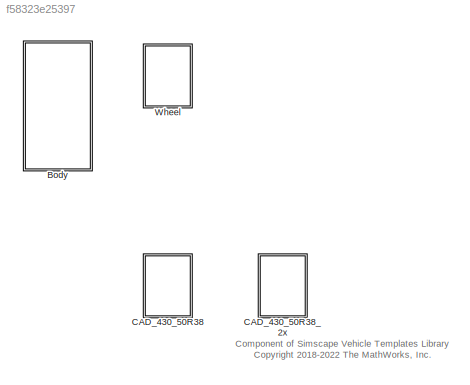
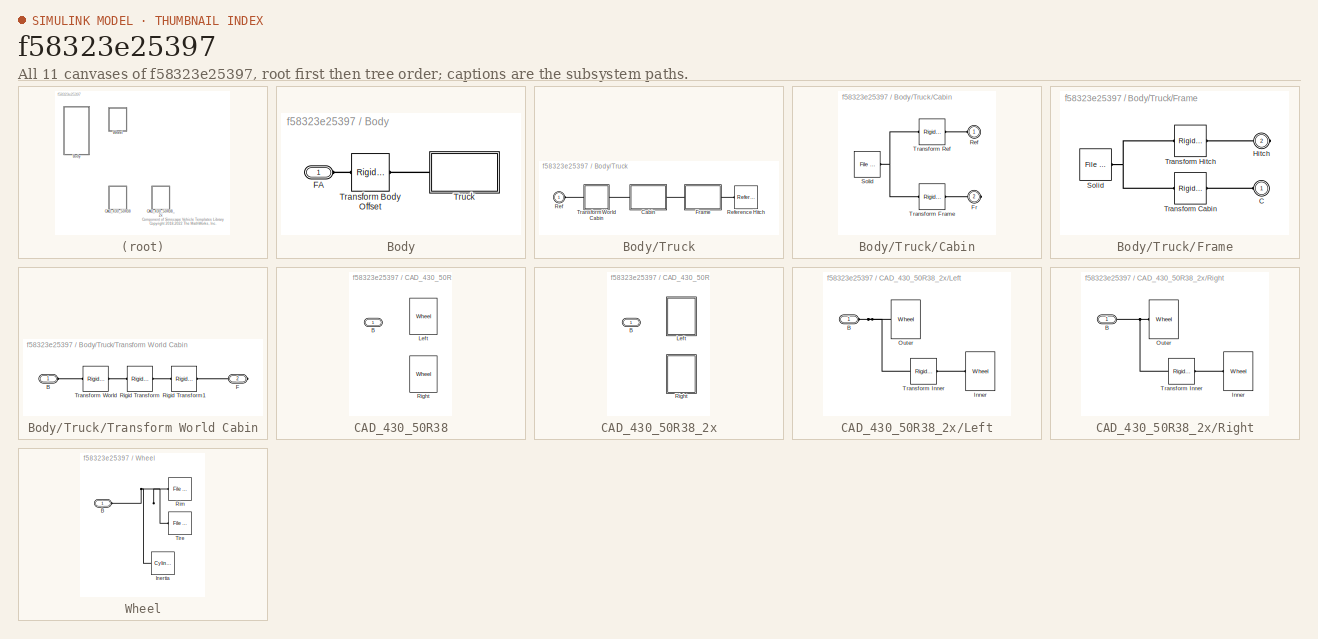
[diagram: thumbnail index - all 11 canvases of the model, root first then tree order]
MODEL slx_f58323e25397
KIND library
CONFIG AbsTol = auto
CONFIG EnableMultiTasking = off
CONFIG FixedStep = auto
CONFIG MaxStep = auto
CONFIG MinStep = auto
CONFIG RelTol = 1e-3
CONFIG SampleTimeConstraint = Unconstrained
CONFIG SolverName = VariableStepAuto
CONFIG StartTime = 0.0
CONFIG StopTime = 10.0
BLOCK [SubSystem] Body
  Ports = [0, 0, 0, 0, 0, 1]
  RequestExecContextInheritance = off
BLOCK [PMIOPort] Body/FA
  Side = Left
BLOCK [Reference] Body/Transform Body Offset  REF=sm_lib/Frames and
Transforms/Rigid
Transform
  Ports = [0, 0, 0, 0, 0, 1, 1]
  SourceBlock = sm_lib/Frames and\nTransforms/Rigid\nTransform
  SourceProductBaseCode = MS
  SourceType = Rigid\nTransform
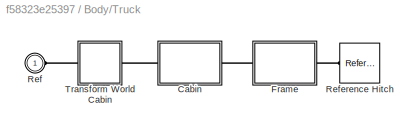
BLOCK [SubSystem] Body/Truck
  Ports = [0, 0, 0, 0, 0, 1]
  RequestExecContextInheritance = off
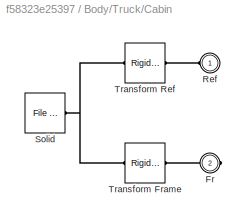
BLOCK [SubSystem] Body/Truck/Cabin
  Ports = [0, 0, 0, 0, 0, 1, 1]
  RequestExecContextInheritance = off
BLOCK [PMIOPort] Body/Truck/Cabin/Fr
  Port = 2
  Side = Right
BLOCK [PMIOPort] Body/Truck/Cabin/Ref
  Side = Left
BLOCK [Reference] Body/Truck/Cabin/Solid  REF=sm_lib/Body Elements/File Solid
  Ports = [0, 0, 0, 0, 0, 0, 1]
  SourceBlock = sm_lib/Body Elements/File Solid
  SourceProductBaseCode = MS
  SourceType = File Solid
BLOCK [Reference] Body/Truck/Cabin/Transform Frame  REF=sm_lib/Frames and
Transforms/Rigid
Transform
  Ports = [0, 0, 0, 0, 0, 1, 1]
  SourceBlock = sm_lib/Frames and\nTransforms/Rigid\nTransform
  SourceProductBaseCode = MS
  SourceType = Rigid\nTransform
BLOCK [Reference] Body/Truck/Cabin/Transform Ref  REF=sm_lib/Frames and
Transforms/Rigid
Transform
  Ports = [0, 0, 0, 0, 0, 1, 1]
  SourceBlock = sm_lib/Frames and\nTransforms/Rigid\nTransform
  SourceProductBaseCode = MS
  SourceType = Rigid\nTransform
BLOCK [SubSystem] Body/Truck/Frame
  Ports = [0, 0, 0, 0, 0, 1, 1]
  RequestExecContextInheritance = off
BLOCK [PMIOPort] Body/Truck/Frame/C
  Side = Left
BLOCK [PMIOPort] Body/Truck/Frame/Hitch
  Port = 2
  Side = Right
BLOCK [Reference] Body/Truck/Frame/Solid  REF=sm_lib/Body Elements/File Solid
  Ports = [0, 0, 0, 0, 0, 0, 1]
  SourceBlock = sm_lib/Body Elements/File Solid
  SourceProductBaseCode = MS
  SourceType = File Solid
BLOCK [Reference] Body/Truck/Frame/Transform Cabin  REF=sm_lib/Frames and
Transforms/Rigid
Transform
  Ports = [0, 0, 0, 0, 0, 1, 1]
  SourceBlock = sm_lib/Frames and\nTransforms/Rigid\nTransform
  SourceProductBaseCode = MS
  SourceType = Rigid\nTransform
BLOCK [Reference] Body/Truck/Frame/Transform Hitch  REF=sm_lib/Frames and
Transforms/Rigid
Transform
  Ports = [0, 0, 0, 0, 0, 1, 1]
  SourceBlock = sm_lib/Frames and\nTransforms/Rigid\nTransform
  SourceProductBaseCode = MS
  SourceType = Rigid\nTransform
BLOCK [PMIOPort] Body/Truck/Ref
  Side = Left
BLOCK [Reference] Body/Truck/Reference Hitch  REF=sm_lib/Frames and
Transforms/Reference
Frame
  Ports = [0, 0, 0, 0, 0, 0, 1]
  SourceBlock = sm_lib/Frames and\nTransforms/Reference\nFrame
  SourceProductBaseCode = MS
  SourceType = Reference\nFrame
BLOCK [SubSystem] Body/Truck/Transform World Cabin
  Ports = [0, 0, 0, 0, 0, 1, 1]
  RequestExecContextInheritance = off
BLOCK [PMIOPort] Body/Truck/Transform World Cabin/B
  Side = Left
BLOCK [PMIOPort] Body/Truck/Transform World Cabin/F
  Port = 2
  Side = Right
BLOCK [Reference] Body/Truck/Transform World Cabin/Rigid Transform  REF=sm_lib/Frames and
Transforms/Rigid
Transform
  Ports = [0, 0, 0, 0, 0, 1, 1]
  SourceBlock = sm_lib/Frames and\nTransforms/Rigid\nTransform
  SourceProductBaseCode = MS
  SourceType = Rigid\nTransform
BLOCK [Reference] Body/Truck/Transform World Cabin/Rigid Transform1  REF=sm_lib/Frames and
Transforms/Rigid
Transform
  Ports = [0, 0, 0, 0, 0, 1, 1]
  SourceBlock = sm_lib/Frames and\nTransforms/Rigid\nTransform
  SourceProductBaseCode = MS
  SourceType = Rigid\nTransform
BLOCK [Reference] Body/Truck/Transform World Cabin/Transform World  REF=sm_lib/Frames and
Transforms/Rigid
Transform
  Ports = [0, 0, 0, 0, 0, 1, 1]
  SourceBlock = sm_lib/Frames and\nTransforms/Rigid\nTransform
  SourceProductBaseCode = MS
  SourceType = Rigid\nTransform
BLOCK [SubSystem] CAD_430_50R38
  AttributesFormatString = %<LabelModeActiveChoice>
  LabelModeActiveChoice = Left
  Ports = [0, 0, 0, 0, 0, 1]
  RequestExecContextInheritance = off
  Variant = on
  VariantControlMode = label
BLOCK [PMIOPort] CAD_430_50R38/B
  Side = Left
BLOCK [Reference] CAD_430_50R38/Left  REF=$bdroot/Wheel
  Ports = [0, 0, 0, 0, 0, 1]
  SourceBlock = $bdroot/Wheel
BLOCK [Reference] CAD_430_50R38/Right  REF=$bdroot/Wheel
  Ports = [0, 0, 0, 0, 0, 1]
  SourceBlock = $bdroot/Wheel
BLOCK [SubSystem] CAD_430_50R38_2x
  AttributesFormatString = %<LabelModeActiveChoice>
  LabelModeActiveChoice = Left
  Ports = [0, 0, 0, 0, 0, 1]
  RequestExecContextInheritance = off
  Variant = on
  VariantControlMode = label
BLOCK [PMIOPort] CAD_430_50R38_2x/B
  Side = Left
BLOCK [SubSystem] CAD_430_50R38_2x/Left
  Ports = [0, 0, 0, 0, 0, 1]
  RequestExecContextInheritance = off
  VariantControl = Left
BLOCK [PMIOPort] CAD_430_50R38_2x/Left/B
  Side = Left
BLOCK [Reference] CAD_430_50R38_2x/Left/Inner  REF=$bdroot/Wheel
  Ports = [0, 0, 0, 0, 0, 1]
  SourceBlock = $bdroot/Wheel
BLOCK [Reference] CAD_430_50R38_2x/Left/Outer  REF=$bdroot/Wheel
  Ports = [0, 0, 0, 0, 0, 1]
  SourceBlock = $bdroot/Wheel
BLOCK [Reference] CAD_430_50R38_2x/Left/Transform Inner  REF=sm_lib/Frames and
Transforms/Rigid
Transform
  Ports = [0, 0, 0, 0, 0, 1, 1]
  SourceBlock = sm_lib/Frames and\nTransforms/Rigid\nTransform
  SourceProductBaseCode = MS
  SourceType = Rigid\nTransform
BLOCK [SubSystem] CAD_430_50R38_2x/Right
  Ports = [0, 0, 0, 0, 0, 1]
  RequestExecContextInheritance = off
  VariantControl = Right
BLOCK [PMIOPort] CAD_430_50R38_2x/Right/B
  Side = Left
BLOCK [Reference] CAD_430_50R38_2x/Right/Inner  REF=$bdroot/Wheel
  Ports = [0, 0, 0, 0, 0, 1]
  SourceBlock = $bdroot/Wheel
BLOCK [Reference] CAD_430_50R38_2x/Right/Outer  REF=$bdroot/Wheel
  Ports = [0, 0, 0, 0, 0, 1]
  SourceBlock = $bdroot/Wheel
BLOCK [Reference] CAD_430_50R38_2x/Right/Transform Inner  REF=sm_lib/Frames and
Transforms/Rigid
Transform
  Ports = [0, 0, 0, 0, 0, 1, 1]
  SourceBlock = sm_lib/Frames and\nTransforms/Rigid\nTransform
  SourceProductBaseCode = MS
  SourceType = Rigid\nTransform
BLOCK [SubSystem] Wheel
  Ports = [0, 0, 0, 0, 0, 1]
  RequestExecContextInheritance = off
BLOCK [PMIOPort] Wheel/B
  Side = Left
BLOCK [Reference] Wheel/Inertia  REF=sm_lib/Body Elements/Cylindrical Solid
  Ports = [0, 0, 0, 0, 0, 0, 1]
  SourceBlock = sm_lib/Body Elements/Cylindrical Solid
  SourceProductBaseCode = MS
  SourceType = Cylindrical Solid
BLOCK [Reference] Wheel/Rim  REF=sm_lib/Body Elements/File Solid
  Ports = [0, 0, 0, 0, 0, 1]
  SourceBlock = sm_lib/Body Elements/File Solid
  SourceProductBaseCode = MS
  SourceType = File Solid
BLOCK [Reference] Wheel/Tire  REF=sm_lib/Body Elements/File Solid
  Ports = [0, 0, 0, 0, 0, 1]
  SourceBlock = sm_lib/Body Elements/File Solid
  SourceProductBaseCode = MS
  SourceType = File Solid
ANNOTATION (root): Component of Simscape Vehicle Templates Library <copyright redacted>
PLINE Body/FA:RConn1 -- Body/Transform Body Offset:LConn1
PLINE Body/Transform Body Offset:RConn1 -- Body/Truck:LConn1
PLINE Body/Truck/Cabin/Fr:RConn1 -- Body/Truck/Cabin/Transform Frame:RConn1
PLINE Body/Truck/Cabin/Ref:RConn1 -- Body/Truck/Cabin/Transform Ref:RConn1
PNET net1: Body/Truck/Cabin/Solid:RConn1 -- Body/Truck/Cabin/Transform Frame:LConn1 -- Body/Truck/Cabin/Transform Ref:LConn1
PLINE Body/Truck/Cabin:LConn1 -- Body/Truck/Transform World Cabin:RConn1
PLINE Body/Truck/Cabin:RConn1 -- Body/Truck/Frame:LConn1
PLINE Body/Truck/Frame/C:RConn1 -- Body/Truck/Frame/Transform Cabin:RConn1
PLINE Body/Truck/Frame/Hitch:RConn1 -- Body/Truck/Frame/Transform Hitch:RConn1
PNET net2: Body/Truck/Frame/Solid:RConn1 -- Body/Truck/Frame/Transform Cabin:LConn1 -- Body/Truck/Frame/Transform Hitch:LConn1
PLINE Body/Truck/Frame:RConn1 -- Body/Truck/Reference Hitch:RConn1
PLINE Body/Truck/Ref:RConn1 -- Body/Truck/Transform World Cabin:LConn1
PLINE Body/Truck/Transform World Cabin/B:RConn1 -- Body/Truck/Transform World Cabin/Transform World:RConn1
PLINE Body/Truck/Transform World Cabin/F:RConn1 -- Body/Truck/Transform World Cabin/Rigid Transform1:RConn1
PLINE Body/Truck/Transform World Cabin/Rigid Transform1:LConn1 -- Body/Truck/Transform World Cabin/Rigid Transform:LConn1
PLINE Body/Truck/Transform World Cabin/Rigid Transform:RConn1 -- Body/Truck/Transform World Cabin/Transform World:LConn1
PNET net3: Wheel/B:RConn1 -- Wheel/Inertia:RConn1 -- Wheel/Rim:LConn1 -- Wheel/Tire:LConn1
note: PNET lines group multi-terminal physical nets as a canonical sorted terminal list (undirected conserving connections); 2-terminal nets keep the pairwise PLINE form
